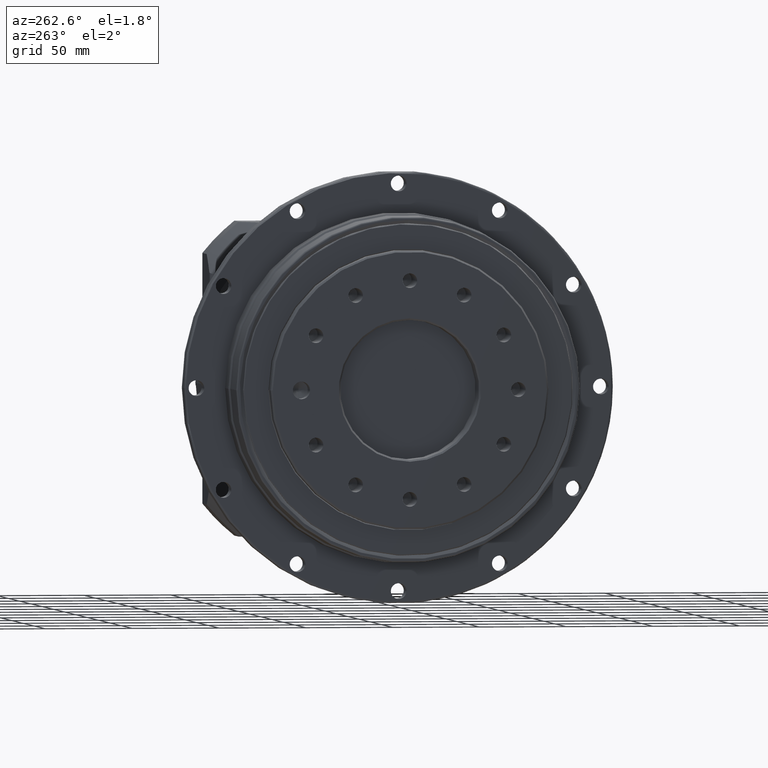
[diagram: clean part render]
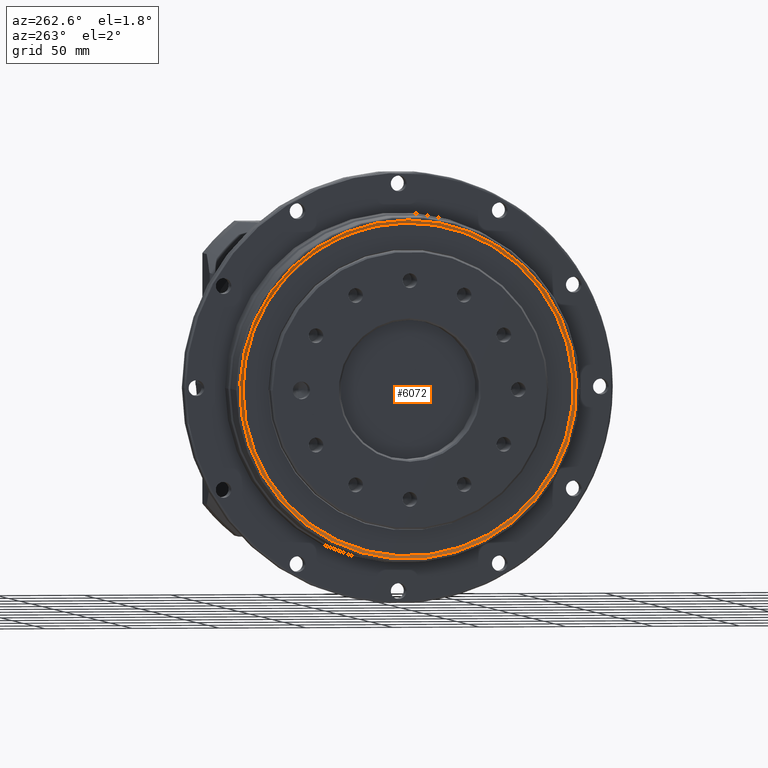
[diagram: same view with one face highlighted and labeled with its STEP entity id]
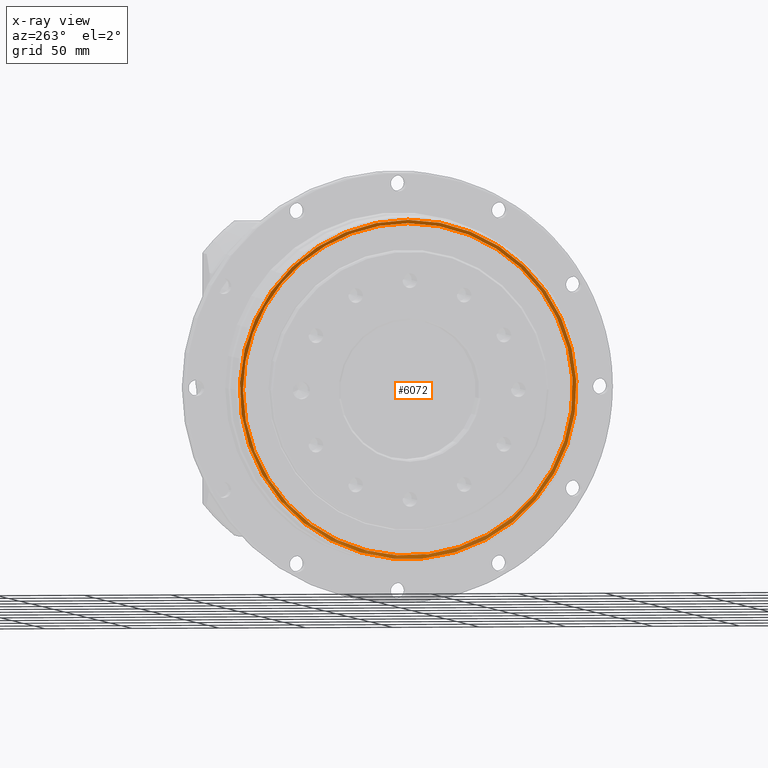
[diagram: x-ray of the same camera — body ghosted, the highlighted face saturated]
A machine part, auxiliary view. The second image highlights one B-rep face of the part: STEP entity #6072.
The next image is the same camera in x-ray: the body ghosted, the highlighted face saturated — about 0% of this face is hidden behind the body in this view.
In plain terms, the highlighted conical surface has half-angle 60 deg.
Its self-contained STEP definition (entity closure, byte-faithful):
#1029=CONICAL_SURFACE('',#6713,96.,60.0000000000001);
#1368=FACE_BOUND('',#2310,.T.);
#1705=FACE_OUTER_BOUND('',#2309,.T.);
#2309=EDGE_LOOP('',(#4999));
#2310=EDGE_LOOP('',(#5000));
#2762=CIRCLE('',#6589,95.);
#2821=CIRCLE('',#6695,97.);
#3226=VERTEX_POINT('',#9905);
#3285=VERTEX_POINT('',#10070);
#3860=EDGE_CURVE('',#3226,#3226,#2762,.T.);
#3919=EDGE_CURVE('',#3285,#3285,#2821,.T.);
#4999=ORIENTED_EDGE('',*,*,#3860,.T.);
#5000=ORIENTED_EDGE('',*,*,#3919,.T.);
#6072=ADVANCED_FACE('',(#1705,#1368),#1029,.F.);
#6589=AXIS2_PLACEMENT_3D('',#9906,#7772,#7773);
#6695=AXIS2_PLACEMENT_3D('',#10071,#7984,#7985);
#6713=AXIS2_PLACEMENT_3D('',#10098,#8020,#8021);
#7772=DIRECTION('center_axis',(1.,1.94289029309402E-16,-2.88295299188087E-15));
#7773=DIRECTION('ref_axis',(-2.88295299188087E-15,-5.92700093359861E-16,
-1.));
#7984=DIRECTION('center_axis',(-1.,-1.94289029309402E-16,2.88295299188087E-15));
#7985=DIRECTION('ref_axis',(-2.88295299188087E-15,-5.92700093359861E-16,
-1.));
#8020=DIRECTION('center_axis',(-1.,-1.94289029309402E-16,2.88295299188087E-15));
#8021=DIRECTION('ref_axis',(-2.88295299188087E-15,-5.92700093359861E-16,
-1.));
#9905=CARTESIAN_POINT('',(-102.680694989219,15.6718015691407,140.471062058916));
#9906=CARTESIAN_POINT('Origin',(-102.680694989219,15.6718015691406,45.4710620589157));
#10070=CARTESIAN_POINT('',(-103.835395527598,15.6718015691407,142.471062058916));
#10071=CARTESIAN_POINT('Origin',(-103.835395527598,15.6718015691406,45.4710620589157));
#10098=CARTESIAN_POINT('Origin',(-103.258045258409,15.6718015691406,45.4710620589157));